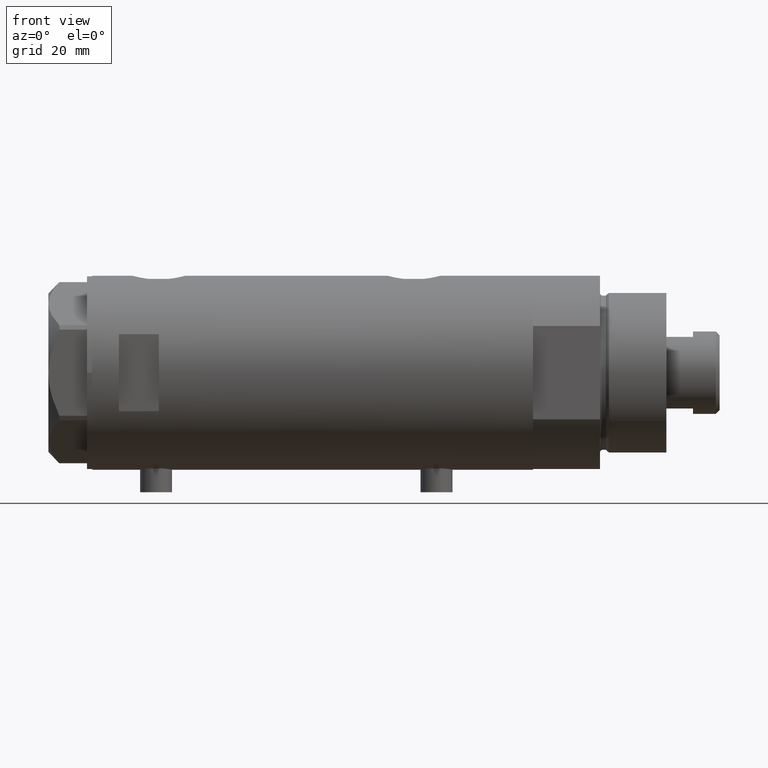
[diagram: clean part render]
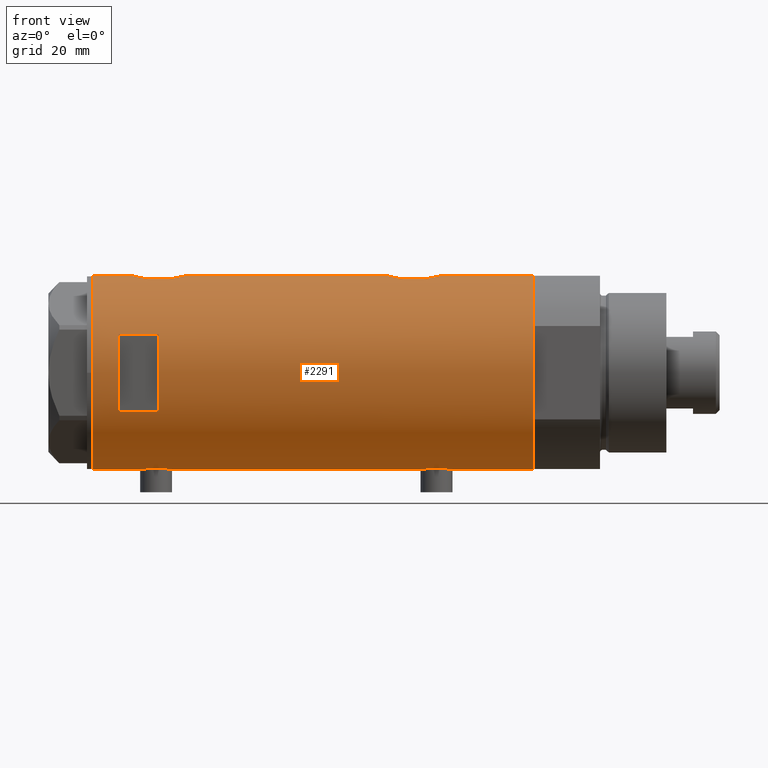
[diagram: same view with one face highlighted and labeled with its STEP entity id]
A machine part, front view. The second image highlights one B-rep face of the part: STEP entity #2291.
In plain terms, the highlighted cylindrical surface (partial cylindrical patch) has radius 36.5 mm, axis along (-1, -0, 0).
Its self-contained STEP definition (entity closure, byte-faithful):
#6 = CARTESIAN_POINT ( 'NONE',  ( -35.96095902952615830, -6.249754054240904466, -47.01658765420470587 ) ) ;
#14 = CARTESIAN_POINT ( 'NONE',  ( -36.36635911126388976, -3.125815113635431075, 53.48394399592097415 ) ) ;
#20 = CARTESIAN_POINT ( 'NONE',  ( 36.09633718678917802, -5.417295330713079338, 66.30914867345214248 ) ) ;
#28 = ORIENTED_EDGE ( 'NONE', *, *, #2945, .T. ) ;
#30 = CARTESIAN_POINT ( 'NONE',  ( -36.16125812922425098, -4.962923794285021728, -42.79553914089240152 ) ) ;
#33 = EDGE_CURVE ( 'NONE', #4018, #1972, #3951, .T. ) ;
#57 = CARTESIAN_POINT ( 'NONE',  ( -35.99659093586380720, -6.041447834568803188, -44.98577587985177217 ) ) ;
#77 = CARTESIAN_POINT ( 'NONE',  ( -36.50000000000000000, 4.469960816887838430E-15, 82.90000000000000568 ) ) ;
#86 = CARTESIAN_POINT ( 'NONE',  ( 36.12724769814495573, -5.207618053557751203, -29.55935879511536157 ) ) ;
#97 = ORIENTED_EDGE ( 'NONE', *, *, #2094, .F. ) ;
#116 = DIRECTION ( 'NONE',  ( -0.000000000000000000, -4.625929269271492422E-15, 1.000000000000000000 ) ) ;
#123 = CARTESIAN_POINT ( 'NONE',  ( 36.50000000000000000, 0.000000000000000000, -82.90000000000000568 ) ) ;
#125 = CARTESIAN_POINT ( 'NONE',  ( 14.49137674618942739, -33.50000000000000000, 57.89999999999999147 ) ) ;
#191 = B_SPLINE_CURVE_WITH_KNOTS ( 'NONE', 3,
 ( #1391, #2843, #2775, #3853, #3115, #710, #2116, #394, #1047, #325, #20, #2141, #1771, #2073, #2440, #1091, #3159, #1438 ),
 .UNSPECIFIED., .F., .F.,
 ( 4, 2, 2, 2, 2, 2, 2, 2, 4 ),
 ( 0.01190956515753144838, 0.01339852714138287625, 0.01488748912523430584, 0.01637645110908573370, 0.01712093210101144763, 0.01786541309293716503, 0.01935437507678861718, 0.02084333706064007280, 0.02382126102834301526 ),
 .UNSPECIFIED. ) ;
#206 = ORIENTED_EDGE ( 'NONE', *, *, #2510, .F. ) ;
#223 = VERTEX_POINT ( 'NONE', #1381 ) ;
#235 = CARTESIAN_POINT ( 'NONE',  ( 0.000000000000000000, 0.000000000000000000, 82.90000000000000568 ) ) ;
#237 = CARTESIAN_POINT ( 'NONE',  ( 35.29999999999999716, -9.282241108697837362, -41.82021504754764862 ) ) ;
#272 = CARTESIAN_POINT ( 'NONE',  ( 35.69273631926343882, -7.635692914629145456, 51.43799804348507365 ) ) ;
#282 = CARTESIAN_POINT ( 'NONE',  ( -36.50000000000000000, 4.469960816887838430E-15, -82.90000000000000568 ) ) ;
#290 = FACE_BOUND ( 'NONE', #1844, .T. ) ;
#297 = CARTESIAN_POINT ( 'NONE',  ( -35.96794010939611042, -6.209972807992070187, 59.71555548991352680 ) ) ;
#308 = CARTESIAN_POINT ( 'NONE',  ( 36.41856252531823657, -2.482507212621167358, 48.20043487153495931 ) ) ;
#317 = CARTESIAN_POINT ( 'NONE',  ( -36.47262891311152089, -1.427622242603853175, 64.98824629211699744 ) ) ;
#325 = CARTESIAN_POINT ( 'NONE',  ( 36.12724769814495573, -5.207618053557753868, 66.44064120488465619 ) ) ;
#342 = CARTESIAN_POINT ( 'NONE',  ( -36.30107494031871340, -3.820993528321226851, 63.86306153536310148 ) ) ;
#353 = CARTESIAN_POINT ( 'NONE',  ( -14.49137674618942739, -33.50000000000000000, -82.90000000000000568 ) ) ;
#358 = CARTESIAN_POINT ( 'NONE',  ( -35.96816095843705341, -6.208699946936208747, -47.42496377127785223 ) ) ;
#381 = CARTESIAN_POINT ( 'NONE',  ( -36.50000000000000000, 4.469960493366092827E-15, -52.85000000000000853 ) ) ;
#386 = VERTEX_POINT ( 'NONE', #2314 ) ;
#387 = CARTESIAN_POINT ( 'NONE',  ( -36.21356728133256553, -4.566014386638760136, 63.17262660764745874 ) ) ;
#388 = CARTESIAN_POINT ( 'NONE',  ( -36.50000000000000000, 4.469960493369248271E-15, 52.65000000000001279 ) ) ;
#394 = CARTESIAN_POINT ( 'NONE',  ( 36.21540437201188922, -4.554727782332259167, 66.80597629088626377 ) ) ;
#395 = VECTOR ( 'NONE', #4148, 1000.000000000000000 ) ;
#438 = CARTESIAN_POINT ( 'NONE',  ( 36.29582892817134621, -3.881628320031158097, -28.87065565465010408 ) ) ;
#456 = CARTESIAN_POINT ( 'NONE',  ( 35.72583162417571145, -7.484316398521975167, -31.44957356280499283 ) ) ;
#459 = VERTEX_POINT ( 'NONE', #4027 ) ;
#461 = DIRECTION ( 'NONE',  ( 1.776356839400250465E-15, 1.000000000000000000, 4.562560375171875891E-15 ) ) ;
#545 = VERTEX_POINT ( 'NONE', #77 ) ;
#560 = VERTEX_POINT ( 'NONE', #3797 ) ;
#612 = ORIENTED_EDGE ( 'NONE', *, *, #936, .F. ) ;
#618 = CARTESIAN_POINT ( 'NONE',  ( 35.29999999999999716, -9.282241108697837362, -34.37978495245235422 ) ) ;
#638 = EDGE_CURVE ( 'NONE', #1080, #3334, #871, .T. ) ;
#664 = CARTESIAN_POINT ( 'NONE',  ( -35.98855750525640929, -6.088954600884540547, -48.02430226150165993 ) ) ;
#683 = CARTESIAN_POINT ( 'NONE',  ( 36.00068527486602221, -6.030855700422095289, -46.09201327127355086 ) ) ;
#688 = CARTESIAN_POINT ( 'NONE',  ( 36.50000000000000000, 4.344604608721388599E-19, 67.90000000000000568 ) ) ;
#692 = CARTESIAN_POINT ( 'NONE',  ( -36.39558535855673682, -2.764807686268002218, -52.20894118545612628 ) ) ;
#705 = EDGE_CURVE ( 'NONE', #2900, #2883, #1149, .T. ) ;
#710 = CARTESIAN_POINT ( 'NONE',  ( 36.34247810649305421, -3.420510937483963065, 67.30986518401726926 ) ) ;
#729 = CARTESIAN_POINT ( 'NONE',  ( 35.93363298843767950, -6.415574104180970849, -45.78651472888893181 ) ) ;
#733 = LINE ( 'NONE', #785, #1485 ) ;
#743 = CARTESIAN_POINT ( 'NONE',  ( -36.40915499150420231, -2.580495338846549025, 53.20394986644524238 ) ) ;
#764 = VERTEX_POINT ( 'NONE', #4051 ) ;
#773 = CARTESIAN_POINT ( 'NONE',  ( 36.50000000000000000, -0.4962708696651104701, -28.10000000000000853 ) ) ;
#778 = DIRECTION ( 'NONE',  ( 0.000000000000000000, 0.000000000000000000, 1.000000000000000000 ) ) ;
#785 = CARTESIAN_POINT ( 'NONE',  ( -36.50000000000000000, 4.469960816887838430E-15, -82.90000000000000568 ) ) ;
#804 = VERTEX_POINT ( 'NONE', #3774 ) ;
#814 = CARTESIAN_POINT ( 'NONE',  ( 35.39807338191550201, -8.909271871950332766, -33.44919617267214562 ) ) ;
#836 = AXIS2_PLACEMENT_3D ( 'NONE', #2506, #4154, #2463 ) ;
#844 = LINE ( 'NONE', #1876, #3365 ) ;
#871 = LINE ( 'NONE', #3663, #1268 ) ;
#898 = ORIENTED_EDGE ( 'NONE', *, *, #2976, .F. ) ;
#902 = ORIENTED_EDGE ( 'NONE', *, *, #3533, .F. ) ;
#936 = EDGE_CURVE ( 'NONE', #1972, #3317, #733, .T. ) ;
#943 = CARTESIAN_POINT ( 'NONE',  ( 36.50000000000000000, 0.000000000000000000, 47.89999999999999858 ) ) ;
#965 = CARTESIAN_POINT ( 'NONE',  ( -36.49999999999999289, -0.4082012689449579512, -52.85000000000000853 ) ) ;
#997 = CARTESIAN_POINT ( 'NONE',  ( -36.06605150775668278, -5.613853192123342772, 56.12234311727456770 ) ) ;
#1007 = DIRECTION ( 'NONE',  ( 1.000000000000000000, 0.000000000000000000, 0.000000000000000000 ) ) ;
#1017 = CARTESIAN_POINT ( 'NONE',  ( -36.09582946723049446, -5.421573071064185179, 55.76391721629512688 ) ) ;
#1037 = CARTESIAN_POINT ( 'NONE',  ( -35.98855750525641639, -6.088954600884528112, 57.47569773849836139 ) ) ;
#1047 = CARTESIAN_POINT ( 'NONE',  ( 36.18674680775578167, -4.776679548204628922, 66.68892316931247422 ) ) ;
#1054 = CARTESIAN_POINT ( 'NONE',  ( -36.35061318816139675, -3.303361544904985347, -51.90964041943019680 ) ) ;
#1065 = CARTESIAN_POINT ( 'NONE',  ( -36.01639592019627401, -5.922235714778413040, 60.90796802426914525 ) ) ;
#1078 = CARTESIAN_POINT ( 'NONE',  ( -36.19599073318030946, -4.702920041824402375, -42.47846168323421523 ) ) ;
#1080 = VERTEX_POINT ( 'NONE', #123 ) ;
#1084 = CARTESIAN_POINT ( 'NONE',  ( -36.09514898390869320, -5.426114745500152381, 62.02838652946137188 ) ) ;
#1091 = CARTESIAN_POINT ( 'NONE',  ( 35.52323553852026095, -8.411295122831241144, 63.39752392951088211 ) ) ;
#1101 = CARTESIAN_POINT ( 'NONE',  ( -36.39621039793030377, -2.776267550998805511, -40.98569246893223550 ) ) ;
#1114 = CARTESIAN_POINT ( 'NONE',  ( 0.000000000000000000, 0.000000000000000000, -82.90000000000000568 ) ) ;
#1149 = B_SPLINE_CURVE_WITH_KNOTS ( 'NONE', 3,
 ( #3998, #1651, #1991, #272, #3035, #1316, #1208, #1470, #1809, #4475, #1621, #1314, #3437, #308, #3032, #1687, #2381, #943 ),
 .UNSPECIFIED., .F., .F.,
 ( 4, 2, 2, 2, 2, 2, 2, 2, 4 ),
 ( -0.01189883390545606184, -0.008924125429092075873, -0.008180448310001064635, -0.007436771190910053397, -0.005949416952728041330, -0.004462062714546030130, -0.002974708476364018930, -0.001487354238182008598, 0.000000000000000000 ),
 .UNSPECIFIED. ) ;
#1156 = CARTESIAN_POINT ( 'NONE',  ( 36.34247810649306132, -3.420510937483960845, -28.69013481598272719 ) ) ;
#1188 = VECTOR ( 'NONE', #2458, 1000.000000000000000 ) ;
#1208 = CARTESIAN_POINT ( 'NONE',  ( 35.83108131285855791, -6.958268797611352419, 50.71369216627174126 ) ) ;
#1268 = VECTOR ( 'NONE', #1941, 1000.000000000000000 ) ;
#1304 = EDGE_CURVE ( 'NONE', #4335, #3334, #2693, .T. ) ;
#1314 = CARTESIAN_POINT ( 'NONE',  ( 36.29527920868844859, -3.886508670267140975, 48.67283724169136860 ) ) ;
#1316 = CARTESIAN_POINT ( 'NONE',  ( 35.79656810172927806, -7.133411935499478496, 50.88745121442323693 ) ) ;
#1319 = EDGE_CURVE ( 'NONE', #2489, #3126, #191, .T. ) ;
#1321 = ORIENTED_EDGE ( 'NONE', *, *, #1304, .F. ) ;
#1323 = CARTESIAN_POINT ( 'NONE',  ( 35.29999999999999716, -9.282241108697837362, -82.90000000000000568 ) ) ;
#1343 = CARTESIAN_POINT ( 'NONE',  ( -36.16125812922425098, -4.962923794285019063, 62.70446085910759138 ) ) ;
#1355 = CYLINDRICAL_SURFACE ( 'NONE', #3647, 36.50000000000000000 ) ;
#1359 = CARTESIAN_POINT ( 'NONE',  ( -36.02823773219771653, -5.849994928883562650, -48.80955101485645287 ) ) ;
#1365 = CARTESIAN_POINT ( 'NONE',  ( -36.39621039793029666, -2.776267550998798850, 64.51430753106778582 ) ) ;
#1366 = CARTESIAN_POINT ( 'NONE',  ( 14.49137674618942739, -33.50000000000000000, -82.90000000000000568 ) ) ;
#1381 = CARTESIAN_POINT ( 'NONE',  ( -14.49137674618942739, -33.50000000000000000, 72.89999999999999147 ) ) ;
#1386 = CARTESIAN_POINT ( 'NONE',  ( -36.49297138689432529, -0.8222528563518540778, 65.10933112053433547 ) ) ;
#1391 = CARTESIAN_POINT ( 'NONE',  ( 36.50000000000000000, 4.344604608721388599E-19, 67.90000000000000568 ) ) ;
#1396 = CARTESIAN_POINT ( 'NONE',  ( -36.06605150775667568, -5.613853192123352542, -49.37765688272543940 ) ) ;
#1403 = CARTESIAN_POINT ( 'NONE',  ( -36.30176144752230982, -3.814344296723633843, 53.93198298049745176 ) ) ;
#1417 = AXIS2_PLACEMENT_3D ( 'NONE', #2921, #116, #461 ) ;
#1432 = CARTESIAN_POINT ( 'NONE',  ( -36.36656776002988778, -3.137002187003155473, 64.32136409273633149 ) ) ;
#1438 = CARTESIAN_POINT ( 'NONE',  ( 35.29999999999999716, -9.282241108697837362, 61.62021504754764578 ) ) ;
#1470 = CARTESIAN_POINT ( 'NONE',  ( 35.93363298843767950, -6.415574104180970849, 50.21348527111108240 ) ) ;
#1485 = VECTOR ( 'NONE', #2846, 1000.000000000000000 ) ;
#1488 = CARTESIAN_POINT ( 'NONE',  ( -36.47262891311152799, -1.427622242603851843, -40.51175370788298835 ) ) ;
#1612 = CARTESIAN_POINT ( 'NONE',  ( 35.39794035667549821, -8.909777761736840773, -42.74954159089456596 ) ) ;
#1621 = CARTESIAN_POINT ( 'NONE',  ( 36.18850502651836365, -4.779575967213807175, 49.10220847109845721 ) ) ;
#1635 = EDGE_CURVE ( 'NONE', #2489, #3058, #3834, .T. ) ;
#1641 = ORIENTED_EDGE ( 'NONE', *, *, #3457, .F. ) ;
#1651 = CARTESIAN_POINT ( 'NONE',  ( 35.39794035667549821, -8.909777761736840773, 53.25045840910545536 ) ) ;
#1676 = CARTESIAN_POINT ( 'NONE',  ( -35.99659093586380010, -6.041447834568789865, 60.51422412014822783 ) ) ;
#1680 = DIRECTION ( 'NONE',  ( 0.000000000000000000, 0.000000000000000000, 1.000000000000000000 ) ) ;
#1687 = CARTESIAN_POINT ( 'NONE',  ( 36.48960339336945680, -1.002724032967599488, 47.93775134026500950 ) ) ;
#1689 = CARTESIAN_POINT ( 'NONE',  ( -36.49315367594273596, -0.8144497809045464498, -52.81039785554752086 ) ) ;
#1700 = LINE ( 'NONE', #1366, #1924 ) ;
#1703 = CIRCLE ( 'NONE', #1917, 36.50000000000000000 ) ;
#1706 = DIRECTION ( 'NONE',  ( 1.000000000000000000, 0.000000000000000000, 0.000000000000000000 ) ) ;
#1724 = CARTESIAN_POINT ( 'NONE',  ( -36.50000000000000000, -0.4082012689449559528, 52.65000000000000568 ) ) ;
#1730 = CARTESIAN_POINT ( 'NONE',  ( 35.69273631926343882, -7.635692914629145456, -44.56200195651491214 ) ) ;
#1743 = CARTESIAN_POINT ( 'NONE',  ( -36.46417279006302437, -1.628689148039105250, 64.93753938693815542 ) ) ;
#1748 = CARTESIAN_POINT ( 'NONE',  ( 35.79656810172927806, -7.133411935499478496, -45.11254878557677728 ) ) ;
#1754 = EDGE_CURVE ( 'NONE', #386, #2883, #1769, .T. ) ;
#1769 = LINE ( 'NONE', #3474, #395 ) ;
#1771 = CARTESIAN_POINT ( 'NONE',  ( 35.93373217836898448, -6.415110096330619349, 65.58704266355093182 ) ) ;
#1781 = VECTOR ( 'NONE', #3897, 1000.000000000000000 ) ;
#1809 = CARTESIAN_POINT ( 'NONE',  ( 36.00068527486602221, -6.030855700422095289, 49.90798672872647046 ) ) ;
#1812 = CARTESIAN_POINT ( 'NONE',  ( 36.21540437201188922, -4.554727782332255615, -29.19402370911373978 ) ) ;
#1829 = CARTESIAN_POINT ( 'NONE',  ( 36.44931971524465553, -1.985988150549293341, -28.28633139468236379 ) ) ;
#1844 = EDGE_LOOP ( 'NONE', ( #898, #206, #3309, #1641 ) ) ;
#1876 = CARTESIAN_POINT ( 'NONE',  ( -36.50000000000000000, 4.469960816887838430E-15, -82.90000000000000568 ) ) ;
#1893 = EDGE_CURVE ( 'NONE', #1968, #4018, #844, .T. ) ;
#1917 = AXIS2_PLACEMENT_3D ( 'NONE', #1114, #778, #1706 ) ;
#1924 = VECTOR ( 'NONE', #2752, 1000.000000000000000 ) ;
#1941 = DIRECTION ( 'NONE',  ( 0.000000000000000000, 0.000000000000000000, 1.000000000000000000 ) ) ;
#1958 = EDGE_CURVE ( 'NONE', #4335, #459, #2664, .T. ) ;
#1968 = VERTEX_POINT ( 'NONE', #282 ) ;
#1972 = VERTEX_POINT ( 'NONE', #3718 ) ;
#1991 = CARTESIAN_POINT ( 'NONE',  ( 35.52320828895290106, -8.411622242316138198, 52.40227134055386671 ) ) ;
#1997 = CIRCLE ( 'NONE', #836, 36.50000000000000000 ) ;
#2039 = CARTESIAN_POINT ( 'NONE',  ( -36.01675918113430441, -5.920026275461276910, 56.88560443482112561 ) ) ;
#2053 = CARTESIAN_POINT ( 'NONE',  ( -35.96794010939611042, -6.209972807992086175, -45.78444451008647320 ) ) ;
#2070 = CARTESIAN_POINT ( 'NONE',  ( 36.50000000000000000, 0.000000000000000000, -82.90000000000000568 ) ) ;
#2073 = CARTESIAN_POINT ( 'NONE',  ( 35.79638309643554805, -7.141827709208436126, 64.91701926969550129 ) ) ;
#2080 = CARTESIAN_POINT ( 'NONE',  ( -36.01675918113430441, -5.920026275461289345, -48.61439556517890281 ) ) ;
#2089 = CARTESIAN_POINT ( 'NONE',  ( -36.19666146462961365, -4.704890678739097609, 54.76570140489218375 ) ) ;
#2094 = EDGE_CURVE ( 'NONE', #3317, #804, #3979, .T. ) ;
#2104 = CARTESIAN_POINT ( 'NONE',  ( -36.30176144752230272, -3.814344296723641836, -51.56801701950257666 ) ) ;
#2110 = CARTESIAN_POINT ( 'NONE',  ( -35.96095902952617251, -6.249754054240892920, 58.48341234579529413 ) ) ;
#2116 = CARTESIAN_POINT ( 'NONE',  ( 36.29582892817135331, -3.881628320031160762, 67.12934434534989236 ) ) ;
#2131 = CARTESIAN_POINT ( 'NONE',  ( -35.96816095843706762, -6.208699946936197200, 58.07503622872215487 ) ) ;
#2141 = CARTESIAN_POINT ( 'NONE',  ( 36.00092304812866928, -6.029438422680412302, 65.89308155573651504 ) ) ;
#2149 = CARTESIAN_POINT ( 'NONE',  ( -36.02782481185207075, -5.852531070448518058, -44.39722991047811718 ) ) ;
#2162 = LINE ( 'NONE', #2495, #1781 ) ;
#2192 = CARTESIAN_POINT ( 'NONE',  ( -36.44454782745417276, -2.020757099930490241, -40.68214135579004420 ) ) ;
#2203 = CARTESIAN_POINT ( 'NONE',  ( 36.48988302519020976, -0.9927202255321161406, -28.13673010588698631 ) ) ;
#2220 = CARTESIAN_POINT ( 'NONE',  ( -36.46417279006303858, -1.628689148039105250, -40.56246061306183748 ) ) ;
#2228 = ORIENTED_EDGE ( 'NONE', *, *, #1319, .F. ) ;
#2232 = ORIENTED_EDGE ( 'NONE', *, *, #3560, .F. ) ;
#2234 = CARTESIAN_POINT ( 'NONE',  ( 36.50000000000000000, 0.000000000000000000, 82.90000000000000568 ) ) ;
#2248 = ORIENTED_EDGE ( 'NONE', *, *, #3087, .T. ) ;
#2272 = CARTESIAN_POINT ( 'NONE',  ( 35.29999999999999716, -9.282241108697837362, -82.90000000000000568 ) ) ;
#2291 = ADVANCED_FACE ( 'NONE', ( #4118, #290 ), #1355, .T. ) ;
#2296 = ORIENTED_EDGE ( 'NONE', *, *, #705, .F. ) ;
#2314 = CARTESIAN_POINT ( 'NONE',  ( 36.50000000000000000, 4.344611676915099379E-19, -28.10000000000000142 ) ) ;
#2363 = VECTOR ( 'NONE', #3262, 1000.000000000000000 ) ;
#2381 = CARTESIAN_POINT ( 'NONE',  ( 36.50000000000000000, -0.5031001875915698252, 47.89999999999999858 ) ) ;
#2404 = CARTESIAN_POINT ( 'NONE',  ( -35.99695583620881223, -6.039273428153914658, -48.22224444987753600 ) ) ;
#2409 = CARTESIAN_POINT ( 'NONE',  ( -36.50000000000000000, -0.4136690418839307215, 65.15000000000001990 ) ) ;
#2418 = ORIENTED_EDGE ( 'NONE', *, *, #1754, .T. ) ;
#2434 = CARTESIAN_POINT ( 'NONE',  ( -35.96087392089862789, -6.250243747806507599, 59.30917490776180045 ) ) ;
#2440 = CARTESIAN_POINT ( 'NONE',  ( 35.72583162417571145, -7.484316398521971614, 64.55042643719502848 ) ) ;
#2455 = CARTESIAN_POINT ( 'NONE',  ( -36.02782481185207075, -5.852531070448503847, 61.10277008952189703 ) ) ;
#2458 = DIRECTION ( 'NONE',  ( 0.000000000000000000, 0.000000000000000000, 1.000000000000000000 ) ) ;
#2460 = CARTESIAN_POINT ( 'NONE',  ( 36.41856252531823657, -2.482507212621167358, -47.79956512846506200 ) ) ;
#2463 = DIRECTION ( 'NONE',  ( 1.000000000000000000, 0.000000000000000000, 0.000000000000000000 ) ) ;
#2466 = CARTESIAN_POINT ( 'NONE',  ( -36.50000000000000711, -0.4136690418839297223, -40.35000000000000853 ) ) ;
#2478 = CARTESIAN_POINT ( 'NONE',  ( 35.83108131285855791, -6.958268797611352419, -45.28630783372827295 ) ) ;
#2485 = CARTESIAN_POINT ( 'NONE',  ( -36.49297138689432529, -0.8222528563518524125, -40.39066887946565743 ) ) ;
#2489 = VERTEX_POINT ( 'NONE', #688 ) ;
#2495 = CARTESIAN_POINT ( 'NONE',  ( -36.50000000000000000, 4.469960816887838430E-15, -82.90000000000000568 ) ) ;
#2506 = CARTESIAN_POINT ( 'NONE',  ( 0.000000000000000000, 0.000000000000000000, 72.89999999999999147 ) ) ;
#2510 = EDGE_CURVE ( 'NONE', #223, #764, #3202, .T. ) ;
#2516 = EDGE_CURVE ( 'NONE', #560, #223, #1997, .T. ) ;
#2522 = CARTESIAN_POINT ( 'NONE',  ( 36.18674680775576746, -4.776679548204623593, -29.31107683068752223 ) ) ;
#2543 = CARTESIAN_POINT ( 'NONE',  ( 36.00092304812866928, -6.029438422680413190, -30.10691844426349562 ) ) ;
#2603 = EDGE_LOOP ( 'NONE', ( #4122, #28, #3688, #1321, #3911, #902, #2418, #2296, #2248, #2228, #4169, #2232, #3446, #97, #612, #4356 ) ) ;
#2615 = LINE ( 'NONE', #2272, #2363 ) ;
#2664 = LINE ( 'NONE', #1323, #4369 ) ;
#2693 = B_SPLINE_CURVE_WITH_KNOTS ( 'NONE', 3,
 ( #237, #1612, #4378, #1730, #3880, #1748, #2478, #729, #683, #4150, #4194, #2800, #3495, #2460, #4484, #4176, #3837, #2755 ),
 .UNSPECIFIED., .F., .F.,
 ( 4, 2, 2, 2, 2, 2, 2, 2, 4 ),
 ( -0.01189883390545606184, -0.008924125429092075873, -0.008180448310001064635, -0.007436771190910053397, -0.005949416952728041330, -0.004462062714546030130, -0.002974708476364018930, -0.001487354238182008598, 0.000000000000000000 ),
 .UNSPECIFIED. ) ;
#2718 = DIRECTION ( 'NONE',  ( 0.000000000000000000, 0.000000000000000000, 1.000000000000000000 ) ) ;
#2729 = CARTESIAN_POINT ( 'NONE',  ( -36.43335814606992784, -2.212659578761317469, 64.74876399169507124 ) ) ;
#2742 = CARTESIAN_POINT ( 'NONE',  ( -36.26692673949090562, -4.128477002029516285, -51.30999987432166876 ) ) ;
#2751 = CARTESIAN_POINT ( 'NONE',  ( -36.14410773716529945, -5.085921866747741049, 62.53835878420471772 ) ) ;
#2752 = DIRECTION ( 'NONE',  ( 0.000000000000000000, 0.000000000000000000, 1.000000000000000000 ) ) ;
#2755 = CARTESIAN_POINT ( 'NONE',  ( 36.50000000000000000, 0.000000000000000000, -48.10000000000000142 ) ) ;
#2770 = CARTESIAN_POINT ( 'NONE',  ( -36.49315367594273596, -0.8144497809045454506, 52.68960214445250045 ) ) ;
#2775 = CARTESIAN_POINT ( 'NONE',  ( 36.48988302519020266, -0.9927202255321159186, 67.86326989411300303 ) ) ;
#2792 = CARTESIAN_POINT ( 'NONE',  ( -36.44454782745417276, -2.020757099930493350, 64.81785864420996290 ) ) ;
#2800 = CARTESIAN_POINT ( 'NONE',  ( 36.29527920868844859, -3.886508670267140975, -47.32716275830865982 ) ) ;
#2804 = DIRECTION ( 'NONE',  ( -0.000000000000000000, -0.000000000000000000, -1.000000000000000000 ) ) ;
#2828 = CARTESIAN_POINT ( 'NONE',  ( -36.21356728133256553, -4.566014386638768130, -42.32737339235254126 ) ) ;
#2843 = CARTESIAN_POINT ( 'NONE',  ( 36.50000000000000000, -0.4962708696651115803, 67.90000000000000568 ) ) ;
#2846 = DIRECTION ( 'NONE',  ( 0.000000000000000000, 0.000000000000000000, 1.000000000000000000 ) ) ;
#2858 = CARTESIAN_POINT ( 'NONE',  ( 35.52323553852026095, -8.411295122831244697, -32.60247607048910368 ) ) ;
#2871 = CARTESIAN_POINT ( 'NONE',  ( -36.30107494031870630, -3.820993528321237509, -41.63693846463691983 ) ) ;
#2883 = VERTEX_POINT ( 'NONE', #4213 ) ;
#2900 = VERTEX_POINT ( 'NONE', #3158 ) ;
#2921 = CARTESIAN_POINT ( 'NONE',  ( 0.000000000000000000, 0.000000000000000000, 57.90000000000014779 ) ) ;
#2943 = CARTESIAN_POINT ( 'NONE',  ( 35.29999999999999716, -9.282241108697837362, 61.62021504754764578 ) ) ;
#2945 = EDGE_CURVE ( 'NONE', #1968, #1080, #1703, .T. ) ;
#2957 = VERTEX_POINT ( 'NONE', #125 ) ;
#2976 = EDGE_CURVE ( 'NONE', #764, #2957, #4233, .T. ) ;
#3032 = CARTESIAN_POINT ( 'NONE',  ( 36.44881677724179525, -1.995085670027224811, 48.08819654630536178 ) ) ;
#3035 = CARTESIAN_POINT ( 'NONE',  ( 35.72742963626382107, -7.471989379615407323, 51.24937739587225138 ) ) ;
#3056 = CARTESIAN_POINT ( 'NONE',  ( -36.40915499150420231, -2.580495338846554354, -52.29605013355477183 ) ) ;
#3058 = VERTEX_POINT ( 'NONE', #2234 ) ;
#3062 = CARTESIAN_POINT ( 'NONE',  ( -36.06543684817879836, -5.617774235967360141, 61.66954447971700404 ) ) ;
#3086 = CARTESIAN_POINT ( 'NONE',  ( -36.44621655743048905, -2.016281777336080161, 52.97017023300883665 ) ) ;
#3087 = EDGE_CURVE ( 'NONE', #2900, #3126, #2615, .T. ) ;
#3088 = CARTESIAN_POINT ( 'NONE',  ( 36.50000000000000000, 0.000000000000000000, -48.10000000000000142 ) ) ;
#3104 = CARTESIAN_POINT ( 'NONE',  ( -36.16096637594732499, -4.968588355849264282, -50.41334492817760093 ) ) ;
#3110 = CARTESIAN_POINT ( 'NONE',  ( -35.98821803976955636, -6.090959022952108448, 60.31573883149418691 ) ) ;
#3115 = CARTESIAN_POINT ( 'NONE',  ( 36.41918031349423757, -2.473644131148929226, 67.60188345463190274 ) ) ;
#3126 = VERTEX_POINT ( 'NONE', #2943 ) ;
#3141 = CARTESIAN_POINT ( 'NONE',  ( -36.26616882068469749, -4.135065845178866439, -41.89584944059903648 ) ) ;
#3158 = CARTESIAN_POINT ( 'NONE',  ( 35.29999999999999716, -9.282241108697837362, 54.17978495245235138 ) ) ;
#3159 = CARTESIAN_POINT ( 'NONE',  ( 35.39807338191550201, -8.909271871950330990, 62.55080382732786148 ) ) ;
#3186 = CARTESIAN_POINT ( 'NONE',  ( -36.01639592019626690, -5.922235714778424587, -44.59203197573086186 ) ) ;
#3202 = LINE ( 'NONE', #353, #4299 ) ;
#3212 = CARTESIAN_POINT ( 'NONE',  ( 36.09633718678917091, -5.417295330713080226, -29.69085132654786463 ) ) ;
#3262 = DIRECTION ( 'NONE',  ( 0.000000000000000000, 0.000000000000000000, 1.000000000000000000 ) ) ;
#3309 = ORIENTED_EDGE ( 'NONE', *, *, #2516, .F. ) ;
#3313 = CARTESIAN_POINT ( 'NONE',  ( 35.29999999999999716, -9.282241108697837362, -41.82021504754764862 ) ) ;
#3317 = VERTEX_POINT ( 'NONE', #388 ) ;
#3334 = VERTEX_POINT ( 'NONE', #3088 ) ;
#3339 = DIRECTION ( 'NONE',  ( 1.000000000000000000, 0.000000000000000000, 0.000000000000000000 ) ) ;
#3365 = VECTOR ( 'NONE', #3584, 1000.000000000000000 ) ;
#3379 = CIRCLE ( 'NONE', #4455, 36.50000000000000000 ) ;
#3437 = CARTESIAN_POINT ( 'NONE',  ( 36.34184199234172041, -3.427106516421254412, 48.49259086319967338 ) ) ;
#3438 = CARTESIAN_POINT ( 'NONE',  ( -35.98821803976953504, -6.090959022952123547, -45.18426116850582730 ) ) ;
#3446 = ORIENTED_EDGE ( 'NONE', *, *, #3500, .F. ) ;
#3448 = CARTESIAN_POINT ( 'NONE',  ( -36.26616882068471881, -4.135065845178862887, 63.60415055940097062 ) ) ;
#3457 = EDGE_CURVE ( 'NONE', #2957, #560, #1700, .T. ) ;
#3471 = CARTESIAN_POINT ( 'NONE',  ( -36.16096637594733210, -4.968588355849251847, 55.08665507182242749 ) ) ;
#3474 = CARTESIAN_POINT ( 'NONE',  ( 36.50000000000000000, 0.000000000000000000, -82.90000000000000568 ) ) ;
#3495 = CARTESIAN_POINT ( 'NONE',  ( 36.34184199234172041, -3.427106516421254412, -47.50740913680033373 ) ) ;
#3500 = EDGE_CURVE ( 'NONE', #804, #545, #2162, .T. ) ;
#3501 = CARTESIAN_POINT ( 'NONE',  ( -36.14410773716529235, -5.085921866747748155, -42.96164121579527517 ) ) ;
#3533 = EDGE_CURVE ( 'NONE', #386, #459, #3815, .T. ) ;
#3542 = CARTESIAN_POINT ( 'NONE',  ( 36.41918031349423757, -2.473644131148924341, -28.39811654536808661 ) ) ;
#3559 = CARTESIAN_POINT ( 'NONE',  ( 35.79638309643554095, -7.141827709208429020, -31.08298073030451292 ) ) ;
#3560 = EDGE_CURVE ( 'NONE', #545, #3058, #3379, .T. ) ;
#3571 = CARTESIAN_POINT ( 'NONE',  ( -36.43335814606994205, -2.212659578761328127, -40.75123600830492165 ) ) ;
#3584 = DIRECTION ( 'NONE',  ( 0.000000000000000000, 0.000000000000000000, 1.000000000000000000 ) ) ;
#3647 = AXIS2_PLACEMENT_3D ( 'NONE', #4094, #2718, #1007 ) ;
#3663 = CARTESIAN_POINT ( 'NONE',  ( 36.50000000000000000, 0.000000000000000000, -82.90000000000000568 ) ) ;
#3688 = ORIENTED_EDGE ( 'NONE', *, *, #638, .T. ) ;
#3718 = CARTESIAN_POINT ( 'NONE',  ( -36.50000000000000000, 7.463603853851042361E-16, -40.34999999999999432 ) ) ;
#3774 = CARTESIAN_POINT ( 'NONE',  ( -36.50000000000000000, 2.196845629780489385E-16, 65.15000000000000568 ) ) ;
#3782 = CARTESIAN_POINT ( 'NONE',  ( -36.39558535855675103, -2.764807686267996001, 53.29105881454392346 ) ) ;
#3797 = CARTESIAN_POINT ( 'NONE',  ( 14.49137674618942739, -33.50000000000000000, 72.89999999999999147 ) ) ;
#3798 = CARTESIAN_POINT ( 'NONE',  ( -36.46614432713122511, -1.622933015999966200, -52.64966597386846558 ) ) ;
#3815 = B_SPLINE_CURVE_WITH_KNOTS ( 'NONE', 3,
 ( #4236, #773, #2203, #1829, #3542, #1156, #438, #1812, #2522, #86, #3212, #2543, #3919, #3559, #456, #2858, #814, #618 ),
 .UNSPECIFIED., .F., .F.,
 ( 4, 2, 2, 2, 2, 2, 2, 2, 4 ),
 ( 0.01190956515753144491, 0.01339852714138289880, 0.01488748912523435095, 0.01637645110908580309, 0.01712093210101153090, 0.01786541309293725524, 0.01935437507678869698, 0.02084333706064013872, 0.02382126102834301179 ),
 .UNSPECIFIED. ) ;
#3831 = CARTESIAN_POINT ( 'NONE',  ( -36.19599073318029525, -4.702920041824397934, 63.02153831676577056 ) ) ;
#3834 = LINE ( 'NONE', #2070, #1188 ) ;
#3837 = CARTESIAN_POINT ( 'NONE',  ( 36.50000000000000000, -0.5031001875915698252, -48.09999999999999432 ) ) ;
#3843 = CARTESIAN_POINT ( 'NONE',  ( -36.50000000000000000, 7.463603853851042361E-16, -40.34999999999999432 ) ) ;
#3849 = CARTESIAN_POINT ( 'NONE',  ( -36.35061318816141096, -3.303361544904979574, 53.59035958056982452 ) ) ;
#3853 = CARTESIAN_POINT ( 'NONE',  ( 36.44931971524464842, -1.985988150549293341, 67.71366860531763621 ) ) ;
#3880 = CARTESIAN_POINT ( 'NONE',  ( 35.72742963626382107, -7.471989379615407323, -44.75062260412776283 ) ) ;
#3887 = CARTESIAN_POINT ( 'NONE',  ( -36.09514898390870741, -5.426114745500162151, -43.47161347053861391 ) ) ;
#3897 = DIRECTION ( 'NONE',  ( 0.000000000000000000, 0.000000000000000000, 1.000000000000000000 ) ) ;
#3911 = ORIENTED_EDGE ( 'NONE', *, *, #1958, .T. ) ;
#3919 = CARTESIAN_POINT ( 'NONE',  ( 35.93373217836898448, -6.415110096330614020, -30.41295733644907173 ) ) ;
#3951 = B_SPLINE_CURVE_WITH_KNOTS ( 'NONE', 3,
 ( #381, #965, #1689, #3798, #4453, #3056, #692, #4158, #1054, #2104, #2742, #4429, #3104, #4097, #1396, #1359, #2080, #2404, #664, #358, #6, #4477, #2053, #3438, #57, #3186, #2149, #4250, #3887, #3501, #30, #1078, #2828, #3141, #2871, #4201, #1101, #3571, #2192, #2220, #1488, #2485, #2466, #3843 ),
 .UNSPECIFIED., .F., .F.,
 ( 4, 2, 2, 2, 2, 2, 2, 2, 2, 2, 2, 2, 2, 2, 2, 2, 2, 2, 2, 2, 2, 4 ),
 ( 0.01957644481942644524, 0.02079966591703048817, 0.02202288701463452764, 0.02263449756343654390, 0.02324610811223856363, 0.02446932920984259616, 0.02569255030744663215, 0.02691577140505066468, 0.02752738195385267400, 0.02813899250265468333, 0.02936221360025868116, 0.03058543469786267552, 0.03119704524666467443, 0.03180865579546667682, 0.03303187689307068853, 0.03364348744187271173, 0.03425509799067472799, 0.03547831908827876746, 0.03670154018588280692, 0.03731315073468483012, 0.03792476128348684639, 0.03914798238109087891 ),
 .UNSPECIFIED. ) ;
#3979 = B_SPLINE_CURVE_WITH_KNOTS ( 'NONE', 3,
 ( #4127, #1724, #2770, #4435, #3086, #743, #3782, #14, #3849, #1403, #4462, #2089, #3471, #1017, #997, #4107, #2039, #4144, #1037, #2131, #2110, #2434, #297, #3110, #1676, #1065, #2455, #3062, #1084, #2751, #1343, #3831, #387, #3448, #342, #1432, #1365, #2729, #2792, #1743, #317, #1386, #2409, #4483 ),
 .UNSPECIFIED., .F., .F.,
 ( 4, 2, 2, 2, 2, 2, 2, 2, 2, 2, 2, 2, 2, 2, 2, 2, 2, 2, 2, 2, 2, 4 ),
 ( 0.01957644481942640707, 0.02079966591703042919, 0.02202288701463445131, 0.02263449756343646410, 0.02324610811223847689, 0.02446932920984250248, 0.02569255030744652807, 0.02691577140505055366, 0.02752738195385255604, 0.02813899250265455843, 0.02936221360025858054, 0.03058543469786260266, 0.03119704524666461545, 0.03180865579546662825, 0.03303187689307066771, 0.03364348744187267704, 0.03425509799067469330, 0.03547831908827872582, 0.03670154018588275141, 0.03731315073468476073, 0.03792476128348677700, 0.03914798238109080952 ),
 .UNSPECIFIED. ) ;
#3998 = CARTESIAN_POINT ( 'NONE',  ( 35.29999999999999716, -9.282241108697837362, 54.17978495245235138 ) ) ;
#4018 = VERTEX_POINT ( 'NONE', #4472 ) ;
#4027 = CARTESIAN_POINT ( 'NONE',  ( 35.29999999999999716, -9.282241108697837362, -34.37978495245235422 ) ) ;
#4051 = CARTESIAN_POINT ( 'NONE',  ( -14.49137674618942739, -33.50000000000000000, 57.89999999999999147 ) ) ;
#4094 = CARTESIAN_POINT ( 'NONE',  ( 0.000000000000000000, 0.000000000000000000, -82.90000000000000568 ) ) ;
#4097 = CARTESIAN_POINT ( 'NONE',  ( -36.09582946723049446, -5.421573071064202054, -49.73608278370488023 ) ) ;
#4107 = CARTESIAN_POINT ( 'NONE',  ( -36.02823773219771653, -5.849994928883547551, 56.69044898514355424 ) ) ;
#4118 = FACE_OUTER_BOUND ( 'NONE', #2603, .T. ) ;
#4122 = ORIENTED_EDGE ( 'NONE', *, *, #1893, .F. ) ;
#4127 = CARTESIAN_POINT ( 'NONE',  ( -36.50000000000000000, 4.469960493369248271E-15, 52.65000000000001279 ) ) ;
#4144 = CARTESIAN_POINT ( 'NONE',  ( -35.99695583620880512, -6.039273428153901335, 57.27775555012245690 ) ) ;
#4148 = DIRECTION ( 'NONE',  ( 0.000000000000000000, 0.000000000000000000, 1.000000000000000000 ) ) ;
#4150 = CARTESIAN_POINT ( 'NONE',  ( 36.12792682573228120, -5.214735277442337669, -46.64693117988700521 ) ) ;
#4154 = DIRECTION ( 'NONE',  ( -0.000000000000000000, 0.000000000000000000, -1.000000000000000000 ) ) ;
#4158 = CARTESIAN_POINT ( 'NONE',  ( -36.36635911126386844, -3.125815113635437736, -52.01605600407904006 ) ) ;
#4169 = ORIENTED_EDGE ( 'NONE', *, *, #1635, .T. ) ;
#4176 = CARTESIAN_POINT ( 'NONE',  ( 36.48960339336945680, -1.002724032967599488, -48.06224865973496208 ) ) ;
#4194 = CARTESIAN_POINT ( 'NONE',  ( 36.18850502651836365, -4.779575967213807175, -46.89779152890154279 ) ) ;
#4201 = CARTESIAN_POINT ( 'NONE',  ( -36.36656776002987357, -3.137002187003164799, -41.17863590726366851 ) ) ;
#4213 = CARTESIAN_POINT ( 'NONE',  ( 36.50000000000000000, 0.000000000000000000, 47.89999999999999858 ) ) ;
#4233 = CIRCLE ( 'NONE', #1417, 36.50000000000000000 ) ;
#4236 = CARTESIAN_POINT ( 'NONE',  ( 36.50000000000000000, 4.344611676915099379E-19, -28.10000000000000142 ) ) ;
#4250 = CARTESIAN_POINT ( 'NONE',  ( -36.06543684817881257, -5.617774235967372576, -43.83045552028299596 ) ) ;
#4299 = VECTOR ( 'NONE', #2804, 1000.000000000000000 ) ;
#4335 = VERTEX_POINT ( 'NONE', #3313 ) ;
#4356 = ORIENTED_EDGE ( 'NONE', *, *, #33, .F. ) ;
#4369 = VECTOR ( 'NONE', #4397, 1000.000000000000000 ) ;
#4378 = CARTESIAN_POINT ( 'NONE',  ( 35.52320828895290106, -8.411622242316138198, -43.59772865944614040 ) ) ;
#4397 = DIRECTION ( 'NONE',  ( 0.000000000000000000, 0.000000000000000000, 1.000000000000000000 ) ) ;
#4429 = CARTESIAN_POINT ( 'NONE',  ( -36.19666146462958523, -4.704890678739107379, -50.73429859510781625 ) ) ;
#4435 = CARTESIAN_POINT ( 'NONE',  ( -36.46614432713123932, -1.622933015999963979, 52.85033402613154863 ) ) ;
#4453 = CARTESIAN_POINT ( 'NONE',  ( -36.44621655743048905, -2.016281777336084158, -52.52982976699116335 ) ) ;
#4455 = AXIS2_PLACEMENT_3D ( 'NONE', #235, #1680, #3339 ) ;
#4462 = CARTESIAN_POINT ( 'NONE',  ( -36.26692673949090562, -4.128477002029507403, 54.19000012567833835 ) ) ;
#4472 = CARTESIAN_POINT ( 'NONE',  ( -36.50000000000000000, 4.469960493366092827E-15, -52.85000000000000853 ) ) ;
#4475 = CARTESIAN_POINT ( 'NONE',  ( 36.12792682573228120, -5.214735277442337669, 49.35306882011299479 ) ) ;
#4477 = CARTESIAN_POINT ( 'NONE',  ( -35.96087392089862078, -6.250243747806522698, -46.19082509223819244 ) ) ;
#4483 = CARTESIAN_POINT ( 'NONE',  ( -36.50000000000000000, 2.196845629780489385E-16, 65.15000000000000568 ) ) ;
#4484 = CARTESIAN_POINT ( 'NONE',  ( 36.44881677724179525, -1.995085670027224811, -47.91180345369464533 ) ) ;